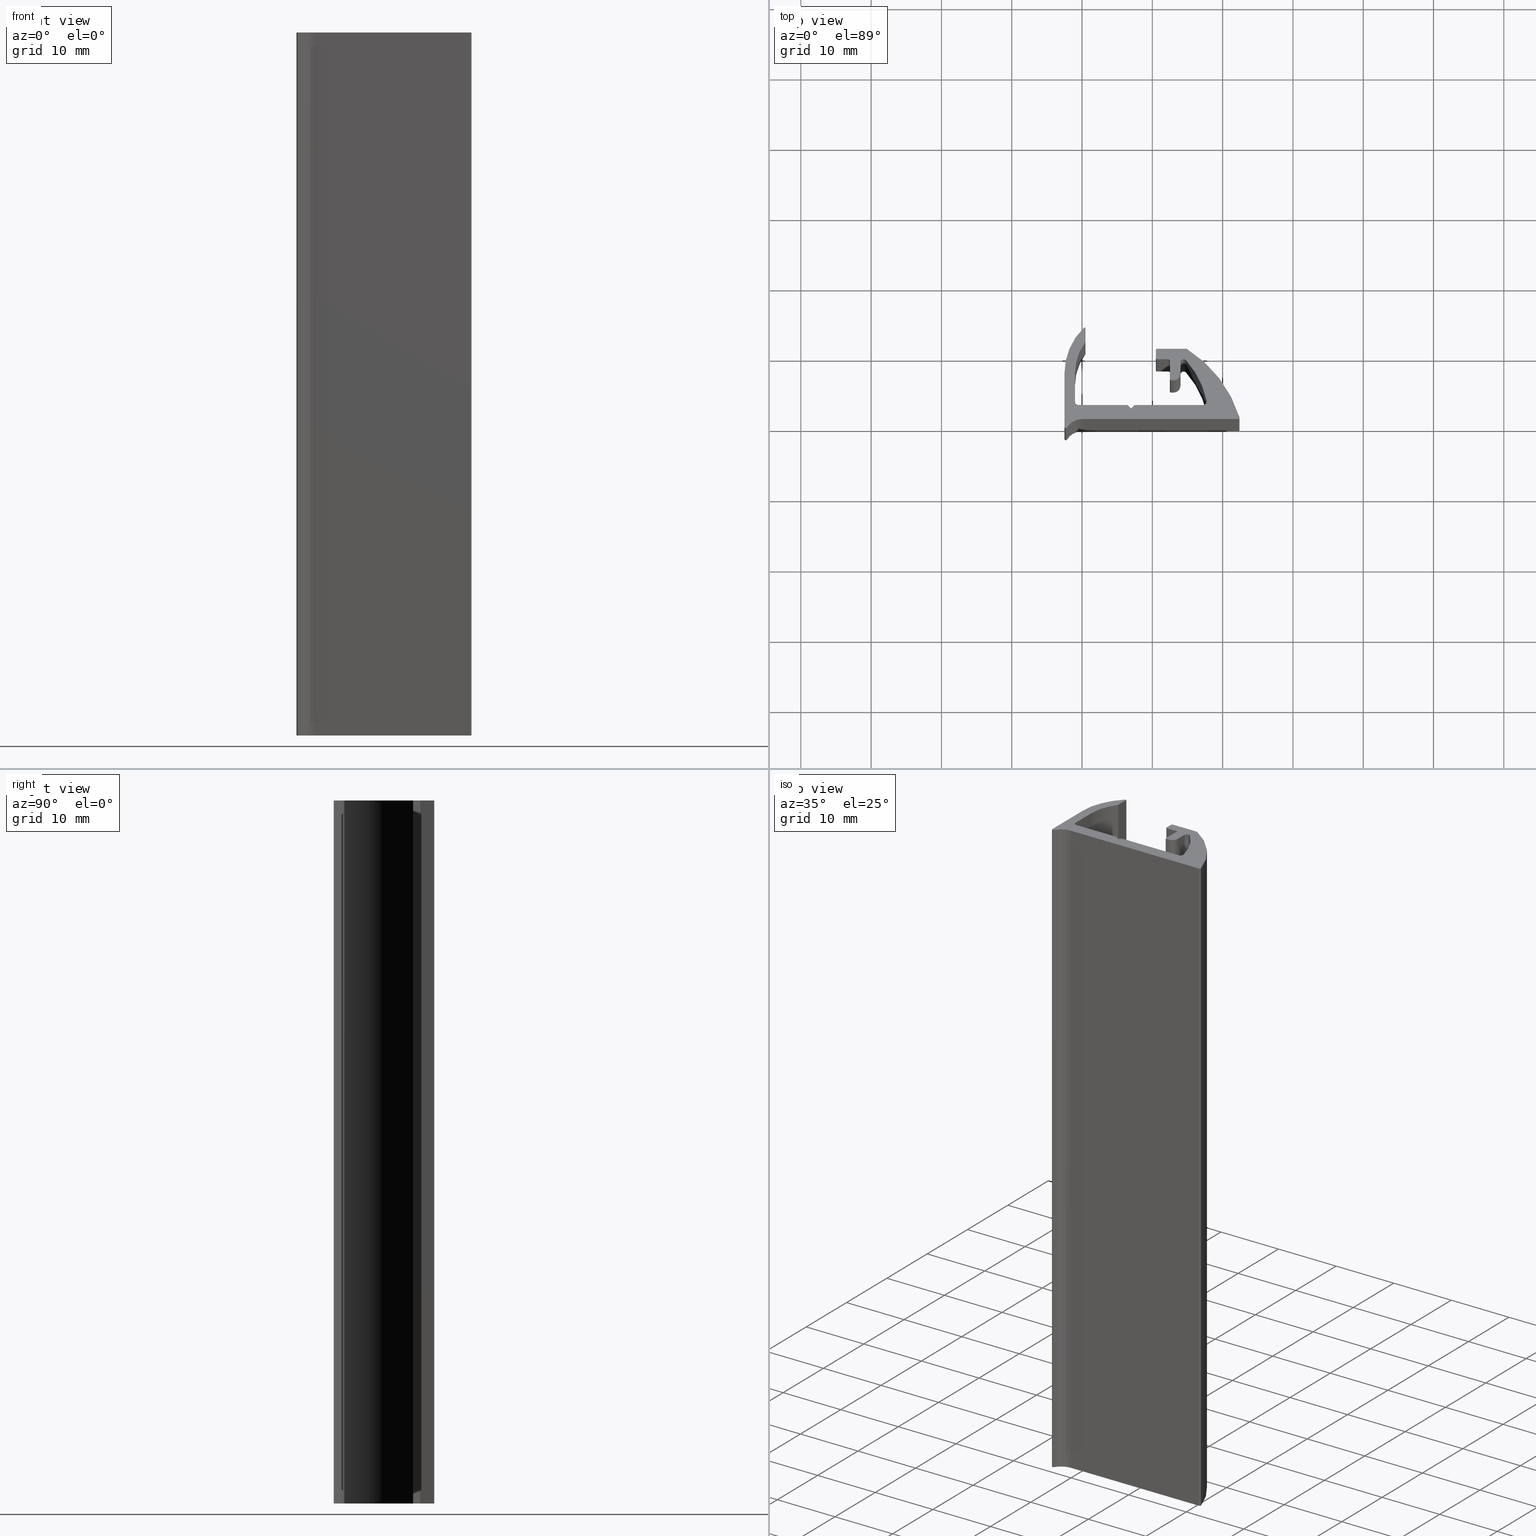
[diagram: canonical four-view strip — front | top / right | iso, engineering-drawing reading convention]
A machine part, canonical four-view strip (front | top / right | iso — engineering-drawing reading convention). The complete STEP part file that produces these views, byte-faithful:
ISO-10303-21;
HEADER;
/****************************************************************
 * Generated by software with PDE/Lib inside                    *
 * PDElib Version v4.4, created Mon 02/23/2004                  *
 * International Technegroup Inc. (www.iti-oh.com)              *
 ****************************************************************/
FILE_DESCRIPTION(('STEP AP203'),'2;1');
FILE_NAME('XB26125.stp','2011-03-21T16:29:51',(''),(''),'2009.3.110','THINKDESIGN','');
FILE_SCHEMA(('CONFIG_CONTROL_DESIGN'));
ENDSEC;
DATA;
#2=CARTESIAN_POINT('',(12.700000000004366,5.699999999975489,0.0));
#3=DIRECTION('',(0.0,0.0,1.0));
#4=DIRECTION('',(-1.0,0.0,0.0));
#5=AXIS2_PLACEMENT_3D('',#2,#3,#4);
#6=CYLINDRICAL_SURFACE('',#5,0.200000000000045);
#7=CARTESIAN_POINT('',(12.500000000004320,5.699999999975489,0.0));
#8=VERTEX_POINT('',#7);
#9=CARTESIAN_POINT('',(12.700000000004366,5.499999999975444,0.0));
#10=VERTEX_POINT('',#9);
#11=CARTESIAN_POINT('',(12.700000000004366,5.699999999975489,0.0));
#12=DIRECTION('',(0.0,0.0,1.0));
#13=DIRECTION('',(-1.0,0.0,0.0));
#14=AXIS2_PLACEMENT_3D('',#11,#12,#13);
#15=CIRCLE('',#14,0.200000000000045);
#16=EDGE_CURVE('',#8,#10,#15,.T.);
#17=ORIENTED_EDGE('',*,*,#16,.T.);
#18=CARTESIAN_POINT('',(12.700000000004366,5.499999999975444,100.0));
#19=VERTEX_POINT('',#18);
#20=CARTESIAN_POINT('',(12.700000000004366,5.499999999975444,0.0));
#21=DIRECTION('',(0.0,0.0,1.0));
#22=VECTOR('',#21,100.0);
#23=LINE('',#20,#22);
#24=EDGE_CURVE('',#10,#19,#23,.T.);
#25=ORIENTED_EDGE('',*,*,#24,.T.);
#26=CARTESIAN_POINT('',(12.500000000004320,5.699999999975489,100.0));
#27=VERTEX_POINT('',#26);
#28=CARTESIAN_POINT('',(12.700000000004366,5.699999999975489,100.0));
#29=DIRECTION('',(0.0,0.0,1.0));
#30=DIRECTION('',(-1.0,0.0,0.0));
#31=AXIS2_PLACEMENT_3D('',#28,#29,#30);
#32=CIRCLE('',#31,0.200000000000045);
#33=EDGE_CURVE('',#27,#19,#32,.T.);
#34=ORIENTED_EDGE('',*,*,#33,.F.);
#35=CARTESIAN_POINT('',(12.500000000004320,5.699999999975489,0.0));
#36=DIRECTION('',(0.0,0.0,1.0));
#37=VECTOR('',#36,100.0);
#38=LINE('',#35,#37);
#39=EDGE_CURVE('',#8,#27,#38,.T.);
#40=ORIENTED_EDGE('',*,*,#39,.F.);
#41=EDGE_LOOP('',(#17,#25,#34,#40));
#42=FACE_OUTER_BOUND('',#41,.T.);
#43=ADVANCED_FACE('',(#42),#6,.T.);
#44=CARTESIAN_POINT('',(12.700000000004366,5.499999999975444,0.0));
#45=DIRECTION('',(0.0,-1.0,0.0));
#46=DIRECTION('',(1.0,0.0,0.0));
#47=AXIS2_PLACEMENT_3D('',#44,#45,#46);
#48=PLANE('',#47);
#49=CARTESIAN_POINT('',(13.000000000004320,5.499999999975444,0.0));
#50=VERTEX_POINT('',#49);
#51=CARTESIAN_POINT('',(12.700000000004366,5.499999999975444,0.0));
#52=DIRECTION('',(1.0,0.0,0.0));
#53=VECTOR('',#52,0.299999999999955);
#54=LINE('',#51,#53);
#55=EDGE_CURVE('',#10,#50,#54,.T.);
#56=ORIENTED_EDGE('',*,*,#55,.T.);
#57=CARTESIAN_POINT('',(13.000000000004320,5.499999999975444,100.0));
#58=VERTEX_POINT('',#57);
#59=CARTESIAN_POINT('',(13.000000000004320,5.499999999975444,0.0));
#60=DIRECTION('',(0.0,0.0,1.0));
#61=VECTOR('',#60,100.0);
#62=LINE('',#59,#61);
#63=EDGE_CURVE('',#50,#58,#62,.T.);
#64=ORIENTED_EDGE('',*,*,#63,.T.);
#65=CARTESIAN_POINT('',(12.700000000004366,5.499999999975444,100.0));
#66=DIRECTION('',(1.0,0.0,0.0));
#67=VECTOR('',#66,0.299999999999955);
#68=LINE('',#65,#67);
#69=EDGE_CURVE('',#19,#58,#68,.T.);
#70=ORIENTED_EDGE('',*,*,#69,.F.);
#71=ORIENTED_EDGE('',*,*,#24,.F.);
#72=EDGE_LOOP('',(#56,#64,#70,#71));
#73=FACE_OUTER_BOUND('',#72,.T.);
#74=ADVANCED_FACE('',(#73),#48,.T.);
#75=CARTESIAN_POINT('',(13.000000000004320,6.499999999975444,0.0));
#76=DIRECTION('',(0.0,0.0,1.0));
#77=DIRECTION('',(0.0,-1.0,0.0));
#78=AXIS2_PLACEMENT_3D('',#75,#76,#77);
#79=CYLINDRICAL_SURFACE('',#78,1.0);
#80=CARTESIAN_POINT('',(14.000000000004320,6.499999999975216,0.0));
#81=VERTEX_POINT('',#80);
#82=CARTESIAN_POINT('',(13.000000000004320,6.499999999975444,0.0));
#83=DIRECTION('',(0.0,0.0,1.0));
#84=DIRECTION('',(0.0,-1.0,0.0));
#85=AXIS2_PLACEMENT_3D('',#82,#83,#84);
#86=CIRCLE('',#85,1.0);
#87=EDGE_CURVE('',#50,#81,#86,.T.);
#88=ORIENTED_EDGE('',*,*,#87,.T.);
#89=CARTESIAN_POINT('',(14.000000000004320,6.499999999975216,100.0));
#90=VERTEX_POINT('',#89);
#91=CARTESIAN_POINT('',(14.000000000004320,6.499999999975216,0.0));
#92=DIRECTION('',(0.0,0.0,1.0));
#93=VECTOR('',#92,100.0);
#94=LINE('',#91,#93);
#95=EDGE_CURVE('',#81,#90,#94,.T.);
#96=ORIENTED_EDGE('',*,*,#95,.T.);
#97=CARTESIAN_POINT('',(13.000000000004320,6.499999999975444,100.0));
#98=DIRECTION('',(0.0,0.0,1.0));
#99=DIRECTION('',(0.0,-1.0,0.0));
#100=AXIS2_PLACEMENT_3D('',#97,#98,#99);
#101=CIRCLE('',#100,1.0);
#102=EDGE_CURVE('',#58,#90,#101,.T.);
#103=ORIENTED_EDGE('',*,*,#102,.F.);
#104=ORIENTED_EDGE('',*,*,#63,.F.);
#105=EDGE_LOOP('',(#88,#96,#103,#104));
#106=FACE_OUTER_BOUND('',#105,.T.);
#107=ADVANCED_FACE('',(#106),#79,.T.);
#108=CARTESIAN_POINT('',(14.000000000004320,6.499999999975216,0.0));
#109=DIRECTION('',(1.0,0.0,0.0));
#110=DIRECTION('',(0.0,1.0,0.0));
#111=AXIS2_PLACEMENT_3D('',#108,#109,#110);
#112=PLANE('',#111);
#113=CARTESIAN_POINT('',(14.000000000004320,8.042387705127794,0.0));
#114=VERTEX_POINT('',#113);
#115=CARTESIAN_POINT('',(14.000000000004320,6.499999999975216,0.0));
#116=DIRECTION('',(0.0,1.0,0.0));
#117=VECTOR('',#116,1.542387705152578);
#118=LINE('',#115,#117);
#119=EDGE_CURVE('',#81,#114,#118,.T.);
#120=ORIENTED_EDGE('',*,*,#119,.T.);
#121=CARTESIAN_POINT('',(14.000000000004320,8.042387705127794,100.0));
#122=VERTEX_POINT('',#121);
#123=CARTESIAN_POINT('',(14.000000000004320,8.042387705127794,0.0));
#124=DIRECTION('',(0.0,0.0,1.0));
#125=VECTOR('',#124,100.0);
#126=LINE('',#123,#125);
#127=EDGE_CURVE('',#114,#122,#126,.T.);
#128=ORIENTED_EDGE('',*,*,#127,.T.);
#129=CARTESIAN_POINT('',(14.000000000004320,6.499999999975216,100.0));
#130=DIRECTION('',(0.0,1.0,0.0));
#131=VECTOR('',#130,1.542387705152578);
#132=LINE('',#129,#131);
#133=EDGE_CURVE('',#90,#122,#132,.T.);
#134=ORIENTED_EDGE('',*,*,#133,.F.);
#135=ORIENTED_EDGE('',*,*,#95,.F.);
#136=EDGE_LOOP('',(#120,#128,#134,#135));
#137=FACE_OUTER_BOUND('',#136,.T.);
#138=ADVANCED_FACE('',(#137),#112,.T.);
#139=CARTESIAN_POINT('',(14.460000000004356,8.042387705127794,0.0));
#140=DIRECTION('',(0.0,0.0,-1.0));
#141=DIRECTION('',(-1.0,-2.220446E-016,0.0));
#142=AXIS2_PLACEMENT_3D('',#139,#140,#141);
#143=CYLINDRICAL_SURFACE('',#142,0.459999999999970);
#144=CARTESIAN_POINT('',(14.802325581399373,8.349655009477829,0.0));
#145=VERTEX_POINT('',#144);
#146=CARTESIAN_POINT('',(14.460000000004358,8.042387705127796,0.0));
#147=DIRECTION('',(0.0,0.0,-1.000000000000000));
#148=DIRECTION('',(0.744186046510953,0.667972400760988,0.0));
#149=AXIS2_PLACEMENT_3D('',#146,#147,#148);
#150=CIRCLE('',#149,0.459999999999970);
#151=EDGE_CURVE('',#114,#145,#150,.T.);
#152=ORIENTED_EDGE('',*,*,#151,.T.);
#153=CARTESIAN_POINT('',(14.802325581399373,8.349655009477829,100.0));
#154=VERTEX_POINT('',#153);
#155=CARTESIAN_POINT('',(14.802325581399373,8.349655009477829,0.0));
#156=DIRECTION('',(0.0,0.0,1.0));
#157=VECTOR('',#156,100.0);
#158=LINE('',#155,#157);
#159=EDGE_CURVE('',#145,#154,#158,.T.);
#160=ORIENTED_EDGE('',*,*,#159,.T.);
#161=CARTESIAN_POINT('',(14.460000000004358,8.042387705127796,100.000000000000060));
#162=DIRECTION('',(0.0,0.0,-1.000000000000000));
#163=DIRECTION('',(0.744186046510953,0.667972400760988,0.0));
#164=AXIS2_PLACEMENT_3D('',#161,#162,#163);
#165=CIRCLE('',#164,0.459999999999970);
#166=EDGE_CURVE('',#122,#154,#165,.T.);
#167=ORIENTED_EDGE('',*,*,#166,.F.);
#168=ORIENTED_EDGE('',*,*,#127,.F.);
#169=EDGE_LOOP('',(#152,#160,#167,#168));
#170=FACE_OUTER_BOUND('',#169,.T.);
#171=ADVANCED_FACE('',(#170),#143,.F.);
#172=CARTESIAN_POINT('',(5.500000000018645,-4.138201E-011,0.0));
#173=DIRECTION('',(0.0,0.0,-1.0));
#174=DIRECTION('',(0.744186046510459,0.667972400761538,0.0));
#175=AXIS2_PLACEMENT_3D('',#172,#173,#174);
#176=CYLINDRICAL_SURFACE('',#175,12.499999999999995);
#177=CARTESIAN_POINT('',(17.725723535755606,2.604166666615583,0.0));
#178=VERTEX_POINT('',#177);
#179=CARTESIAN_POINT('',(5.500000000018646,-4.138201E-011,0.0));
#180=DIRECTION('',(0.0,0.0,-1.000000000000000));
#181=DIRECTION('',(0.978057882858957,0.208333333332557,0.0));
#182=AXIS2_PLACEMENT_3D('',#179,#180,#181);
#183=CIRCLE('',#182,12.499999999999995);
#184=EDGE_CURVE('',#145,#178,#183,.T.);
#185=ORIENTED_EDGE('',*,*,#184,.T.);
#186=CARTESIAN_POINT('',(17.725723535755606,2.604166666615583,100.0));
#187=VERTEX_POINT('',#186);
#188=CARTESIAN_POINT('',(17.725723535755606,2.604166666615583,0.0));
#189=DIRECTION('',(0.0,0.0,1.0));
#190=VECTOR('',#189,100.0);
#191=LINE('',#188,#190);
#192=EDGE_CURVE('',#178,#187,#191,.T.);
#193=ORIENTED_EDGE('',*,*,#192,.T.);
#194=CARTESIAN_POINT('',(5.500000000018646,-4.138201E-011,100.000000000000060));
#195=DIRECTION('',(0.0,0.0,-1.000000000000000));
#196=DIRECTION('',(0.978057882858957,0.208333333332557,0.0));
#197=AXIS2_PLACEMENT_3D('',#194,#195,#196);
#198=CIRCLE('',#197,12.499999999999995);
#199=EDGE_CURVE('',#154,#187,#198,.T.);
#200=ORIENTED_EDGE('',*,*,#199,.F.);
#201=ORIENTED_EDGE('',*,*,#159,.F.);
#202=EDGE_LOOP('',(#185,#193,#200,#201));
#203=FACE_OUTER_BOUND('',#202,.T.);
#204=ADVANCED_FACE('',(#203),#176,.F.);
#205=CARTESIAN_POINT('',(17.236694594328128,2.499999999940087,0.0));
#206=DIRECTION('',(0.0,0.0,-1.0));
#207=DIRECTION('',(0.978057882855027,0.208333333351008,0.0));
#208=AXIS2_PLACEMENT_3D('',#205,#206,#207);
#209=CYLINDRICAL_SURFACE('',#208,0.500000000000000);
#210=CARTESIAN_POINT('',(17.236694594328583,1.999999999940087,0.0));
#211=VERTEX_POINT('',#210);
#212=CARTESIAN_POINT('',(17.236694594328128,2.499999999940087,0.0));
#213=DIRECTION('',(0.0,0.0,-1.0));
#214=DIRECTION('',(9.094947E-013,-1.0,0.0));
#215=AXIS2_PLACEMENT_3D('',#212,#213,#214);
#216=CIRCLE('',#215,0.500000000000000);
#217=EDGE_CURVE('',#178,#211,#216,.T.);
#218=ORIENTED_EDGE('',*,*,#217,.T.);
#219=CARTESIAN_POINT('',(17.236694594328583,1.999999999940087,100.0));
#220=VERTEX_POINT('',#219);
#221=CARTESIAN_POINT('',(17.236694594328583,1.999999999940087,0.0));
#222=DIRECTION('',(0.0,0.0,1.0));
#223=VECTOR('',#222,100.0);
#224=LINE('',#221,#223);
#225=EDGE_CURVE('',#211,#220,#224,.T.);
#226=ORIENTED_EDGE('',*,*,#225,.T.);
#227=CARTESIAN_POINT('',(17.236694594328128,2.499999999940087,100.0));
#228=DIRECTION('',(0.0,0.0,-1.0));
#229=DIRECTION('',(9.094947E-013,-1.0,0.0));
#230=AXIS2_PLACEMENT_3D('',#227,#228,#229);
#231=CIRCLE('',#230,0.500000000000000);
#232=EDGE_CURVE('',#187,#220,#231,.T.);
#233=ORIENTED_EDGE('',*,*,#232,.F.);
#234=ORIENTED_EDGE('',*,*,#192,.F.);
#235=EDGE_LOOP('',(#218,#226,#233,#234));
#236=FACE_OUTER_BOUND('',#235,.T.);
#237=ADVANCED_FACE('',(#236),#209,.F.);
#238=CARTESIAN_POINT('',(17.236694594328583,1.999999999940087,0.0));
#239=DIRECTION('',(0.0,1.0,0.0));
#240=DIRECTION('',(-1.0,0.0,0.0));
#241=AXIS2_PLACEMENT_3D('',#238,#239,#240);
#242=PLANE('',#241);
#243=CARTESIAN_POINT('',(7.500000000023647,1.999999999940087,0.0));
#244=VERTEX_POINT('',#243);
#245=CARTESIAN_POINT('',(17.236694594328583,1.999999999940087,0.0));
#246=DIRECTION('',(-1.0,0.0,0.0));
#247=VECTOR('',#246,9.736694594304936);
#248=LINE('',#245,#247);
#249=EDGE_CURVE('',#211,#244,#248,.T.);
#250=ORIENTED_EDGE('',*,*,#249,.T.);
#251=CARTESIAN_POINT('',(7.500000000023647,1.999999999940087,100.0));
#252=VERTEX_POINT('',#251);
#253=CARTESIAN_POINT('',(7.500000000023647,1.999999999940087,0.0));
#254=DIRECTION('',(0.0,0.0,1.0));
#255=VECTOR('',#254,100.0);
#256=LINE('',#253,#255);
#257=EDGE_CURVE('',#244,#252,#256,.T.);
#258=ORIENTED_EDGE('',*,*,#257,.T.);
#259=CARTESIAN_POINT('',(17.236694594328583,1.999999999940087,100.0));
#260=DIRECTION('',(-1.0,0.0,0.0));
#261=VECTOR('',#260,9.736694594304936);
#262=LINE('',#259,#261);
#263=EDGE_CURVE('',#220,#252,#262,.T.);
#264=ORIENTED_EDGE('',*,*,#263,.F.);
#265=ORIENTED_EDGE('',*,*,#225,.F.);
#266=EDGE_LOOP('',(#250,#258,#264,#265));
#267=FACE_OUTER_BOUND('',#266,.T.);
#268=ADVANCED_FACE('',(#267),#242,.T.);
#269=CARTESIAN_POINT('',(7.500000000023647,1.999999999940087,0.0));
#270=DIRECTION('',(-0.707106781186548,0.707106781186548,0.0));
#271=DIRECTION('',(-0.707106781186548,-0.707106781186548,0.0));
#272=AXIS2_PLACEMENT_3D('',#269,#270,#271);
#273=PLANE('',#272);
#274=CARTESIAN_POINT('',(7.000000000062755,1.499999999979195,0.0));
#275=VERTEX_POINT('',#274);
#276=CARTESIAN_POINT('',(7.500000000023647,1.999999999940087,0.0));
#277=DIRECTION('',(-0.707106781186548,-0.707106781186548,0.0));
#278=VECTOR('',#277,0.707106781131240);
#279=LINE('',#276,#278);
#280=EDGE_CURVE('',#244,#275,#279,.T.);
#281=ORIENTED_EDGE('',*,*,#280,.T.);
#282=CARTESIAN_POINT('',(7.000000000062755,1.499999999979195,100.0));
#283=VERTEX_POINT('',#282);
#284=CARTESIAN_POINT('',(7.000000000062755,1.499999999979195,0.0));
#285=DIRECTION('',(0.0,0.0,1.0));
#286=VECTOR('',#285,100.0);
#287=LINE('',#284,#286);
#288=EDGE_CURVE('',#275,#283,#287,.T.);
#289=ORIENTED_EDGE('',*,*,#288,.T.);
#290=CARTESIAN_POINT('',(7.500000000023647,1.999999999940087,100.0));
#291=DIRECTION('',(-0.707106781186548,-0.707106781186548,0.0));
#292=VECTOR('',#291,0.707106781131240);
#293=LINE('',#290,#292);
#294=EDGE_CURVE('',#252,#283,#293,.T.);
#295=ORIENTED_EDGE('',*,*,#294,.F.);
#296=ORIENTED_EDGE('',*,*,#257,.F.);
#297=EDGE_LOOP('',(#281,#289,#295,#296));
#298=FACE_OUTER_BOUND('',#297,.T.);
#299=ADVANCED_FACE('',(#298),#273,.T.);
#300=CARTESIAN_POINT('',(7.000000000062755,1.499999999979195,0.0));
#301=DIRECTION('',(0.707106781186548,0.707106781186548,0.0));
#302=DIRECTION('',(-0.707106781186548,0.707106781186548,0.0));
#303=AXIS2_PLACEMENT_3D('',#300,#301,#302);
#304=PLANE('',#303);
#305=CARTESIAN_POINT('',(6.500000000020691,2.000000000021259,0.0));
#306=VERTEX_POINT('',#305);
#307=CARTESIAN_POINT('',(7.000000000062755,1.499999999979195,0.0));
#308=DIRECTION('',(-0.707106781186547,0.707106781186547,0.0));
#309=VECTOR('',#308,0.707106781246035);
#310=LINE('',#307,#309);
#311=EDGE_CURVE('',#275,#306,#310,.T.);
#312=ORIENTED_EDGE('',*,*,#311,.T.);
#313=CARTESIAN_POINT('',(6.500000000020691,2.000000000021259,100.0));
#314=VERTEX_POINT('',#313);
#315=CARTESIAN_POINT('',(6.500000000020691,2.000000000021259,0.0));
#316=DIRECTION('',(0.0,0.0,1.0));
#317=VECTOR('',#316,100.0);
#318=LINE('',#315,#317);
#319=EDGE_CURVE('',#306,#314,#318,.T.);
#320=ORIENTED_EDGE('',*,*,#319,.T.);
#321=CARTESIAN_POINT('',(7.000000000062755,1.499999999979195,100.0));
#322=DIRECTION('',(-0.707106781186547,0.707106781186547,0.0));
#323=VECTOR('',#322,0.707106781246035);
#324=LINE('',#321,#323);
#325=EDGE_CURVE('',#283,#314,#324,.T.);
#326=ORIENTED_EDGE('',*,*,#325,.F.);
#327=ORIENTED_EDGE('',*,*,#288,.F.);
#328=EDGE_LOOP('',(#312,#320,#326,#327));
#329=FACE_OUTER_BOUND('',#328,.T.);
#330=ADVANCED_FACE('',(#329),#304,.T.);
#331=CARTESIAN_POINT('',(6.500000000020691,2.000000000021259,0.0));
#332=DIRECTION('',(0.0,1.0,0.0));
#333=DIRECTION('',(-1.0,0.0,0.0));
#334=AXIS2_PLACEMENT_3D('',#331,#332,#333);
#335=PLANE('',#334);
#336=CARTESIAN_POINT('',(-0.499999999979309,2.000000000021259,0.0));
#337=VERTEX_POINT('',#336);
#338=CARTESIAN_POINT('',(6.500000000020691,2.000000000021259,0.0));
#339=DIRECTION('',(-1.0,0.0,0.0));
#340=VECTOR('',#339,7.0);
#341=LINE('',#338,#340);
#342=EDGE_CURVE('',#306,#337,#341,.T.);
#343=ORIENTED_EDGE('',*,*,#342,.T.);
#344=CARTESIAN_POINT('',(-0.499999999979309,2.000000000021259,100.0));
#345=VERTEX_POINT('',#344);
#346=CARTESIAN_POINT('',(-0.499999999979309,2.000000000021259,0.0));
#347=DIRECTION('',(0.0,0.0,1.0));
#348=VECTOR('',#347,100.0);
#349=LINE('',#346,#348);
#350=EDGE_CURVE('',#337,#345,#349,.T.);
#351=ORIENTED_EDGE('',*,*,#350,.T.);
#352=CARTESIAN_POINT('',(6.500000000020691,2.000000000021259,100.0));
#353=DIRECTION('',(-1.0,0.0,0.0));
#354=VECTOR('',#353,7.0);
#355=LINE('',#352,#354);
#356=EDGE_CURVE('',#314,#345,#355,.T.);
#357=ORIENTED_EDGE('',*,*,#356,.F.);
#358=ORIENTED_EDGE('',*,*,#319,.F.);
#359=EDGE_LOOP('',(#343,#351,#357,#358));
#360=FACE_OUTER_BOUND('',#359,.T.);
#361=ADVANCED_FACE('',(#360),#335,.T.);
#362=CARTESIAN_POINT('',(-0.499999999979309,2.500000000021259,0.0));
#363=DIRECTION('',(0.0,0.0,-1.0));
#364=DIRECTION('',(-6.123234E-017,-1.0,0.0));
#365=AXIS2_PLACEMENT_3D('',#362,#363,#364);
#366=CYLINDRICAL_SURFACE('',#365,0.500000000000000);
#367=CARTESIAN_POINT('',(-0.999999999979309,2.500000000021259,0.0));
#368=VERTEX_POINT('',#367);
#369=CARTESIAN_POINT('',(-0.499999999979309,2.500000000021259,0.0));
#370=DIRECTION('',(0.0,0.0,-1.0));
#371=DIRECTION('',(-1.0,0.0,0.0));
#372=AXIS2_PLACEMENT_3D('',#369,#370,#371);
#373=CIRCLE('',#372,0.500000000000000);
#374=EDGE_CURVE('',#337,#368,#373,.T.);
#375=ORIENTED_EDGE('',*,*,#374,.T.);
#376=CARTESIAN_POINT('',(-0.999999999979309,2.500000000021259,100.0));
#377=VERTEX_POINT('',#376);
#378=CARTESIAN_POINT('',(-0.999999999979309,2.500000000021259,0.0));
#379=DIRECTION('',(0.0,0.0,1.0));
#380=VECTOR('',#379,100.0);
#381=LINE('',#378,#380);
#382=EDGE_CURVE('',#368,#377,#381,.T.);
#383=ORIENTED_EDGE('',*,*,#382,.T.);
#384=CARTESIAN_POINT('',(-0.499999999979309,2.500000000021259,100.0));
#385=DIRECTION('',(0.0,0.0,-1.0));
#386=DIRECTION('',(-1.0,0.0,0.0));
#387=AXIS2_PLACEMENT_3D('',#384,#385,#386);
#388=CIRCLE('',#387,0.500000000000000);
#389=EDGE_CURVE('',#345,#377,#388,.T.);
#390=ORIENTED_EDGE('',*,*,#389,.F.);
#391=ORIENTED_EDGE('',*,*,#350,.F.);
#392=EDGE_LOOP('',(#375,#383,#390,#391));
#393=FACE_OUTER_BOUND('',#392,.T.);
#394=ADVANCED_FACE('',(#393),#366,.F.);
#395=CARTESIAN_POINT('',(-0.999999999979309,2.500000000021259,0.0));
#396=DIRECTION('',(1.0,0.0,0.0));
#397=DIRECTION('',(0.0,1.0,0.0));
#398=AXIS2_PLACEMENT_3D('',#395,#396,#397);
#399=PLANE('',#398);
#400=CARTESIAN_POINT('',(-0.999999999979309,6.500000000021259,0.0));
#401=VERTEX_POINT('',#400);
#402=CARTESIAN_POINT('',(-0.999999999979309,2.500000000021259,0.0));
#403=DIRECTION('',(0.0,1.0,0.0));
#404=VECTOR('',#403,4.0);
#405=LINE('',#402,#404);
#406=EDGE_CURVE('',#368,#401,#405,.T.);
#407=ORIENTED_EDGE('',*,*,#406,.T.);
#408=CARTESIAN_POINT('',(-0.999999999979309,6.500000000021259,100.0));
#409=VERTEX_POINT('',#408);
#410=CARTESIAN_POINT('',(-0.999999999979309,6.500000000021259,0.0));
#411=DIRECTION('',(0.0,0.0,1.0));
#412=VECTOR('',#411,100.0);
#413=LINE('',#410,#412);
#414=EDGE_CURVE('',#401,#409,#413,.T.);
#415=ORIENTED_EDGE('',*,*,#414,.T.);
#416=CARTESIAN_POINT('',(-0.999999999979309,2.500000000021259,100.0));
#417=DIRECTION('',(0.0,1.0,0.0));
#418=VECTOR('',#417,4.0);
#419=LINE('',#416,#418);
#420=EDGE_CURVE('',#377,#409,#419,.T.);
#421=ORIENTED_EDGE('',*,*,#420,.F.);
#422=ORIENTED_EDGE('',*,*,#382,.F.);
#423=EDGE_LOOP('',(#407,#415,#421,#422));
#424=FACE_OUTER_BOUND('',#423,.T.);
#425=ADVANCED_FACE('',(#424),#399,.T.);
#426=CARTESIAN_POINT('',(6.500000000020691,6.500000000021259,0.0));
#427=DIRECTION('',(0.0,0.0,-1.0));
#428=DIRECTION('',(-1.0,1.665335E-016,0.0));
#429=AXIS2_PLACEMENT_3D('',#426,#427,#428);
#430=CYLINDRICAL_SURFACE('',#429,7.500000000000068);
#431=CARTESIAN_POINT('',(0.500000000014552,11.000000000013188,0.0));
#432=VERTEX_POINT('',#431);
#433=CARTESIAN_POINT('',(6.500000000020691,6.500000000021259,0.0));
#434=DIRECTION('',(0.0,0.0,-1.0));
#435=DIRECTION('',(-0.800000000000811,0.599999999998918,0.0));
#436=AXIS2_PLACEMENT_3D('',#433,#434,#435);
#437=CIRCLE('',#436,7.500000000000068);
#438=EDGE_CURVE('',#401,#432,#437,.T.);
#439=ORIENTED_EDGE('',*,*,#438,.T.);
#440=CARTESIAN_POINT('',(0.500000000014552,11.000000000013188,100.0));
#441=VERTEX_POINT('',#440);
#442=CARTESIAN_POINT('',(0.500000000014552,11.000000000013188,0.0));
#443=DIRECTION('',(0.0,0.0,1.0));
#444=VECTOR('',#443,100.0);
#445=LINE('',#442,#444);
#446=EDGE_CURVE('',#432,#441,#445,.T.);
#447=ORIENTED_EDGE('',*,*,#446,.T.);
#448=CARTESIAN_POINT('',(6.500000000020691,6.500000000021259,100.0));
#449=DIRECTION('',(0.0,0.0,-1.0));
#450=DIRECTION('',(-0.800000000000811,0.599999999998918,0.0));
#451=AXIS2_PLACEMENT_3D('',#448,#449,#450);
#452=CIRCLE('',#451,7.500000000000068);
#453=EDGE_CURVE('',#409,#441,#452,.T.);
#454=ORIENTED_EDGE('',*,*,#453,.F.);
#455=ORIENTED_EDGE('',*,*,#414,.F.);
#456=EDGE_LOOP('',(#439,#447,#454,#455));
#457=FACE_OUTER_BOUND('',#456,.T.);
#458=ADVANCED_FACE('',(#457),#430,.F.);
#459=CARTESIAN_POINT('',(0.500000000014552,11.000000000013188,0.0));
#460=DIRECTION('',(1.0,7.275958E-012,0.0));
#461=DIRECTION('',(-7.275958E-012,1.0,0.0));
#462=AXIS2_PLACEMENT_3D('',#459,#460,#461);
#463=PLANE('',#462);
#464=CARTESIAN_POINT('',(0.500000000000000,12.999999999999886,0.0));
#465=VERTEX_POINT('',#464);
#466=CARTESIAN_POINT('',(0.500000000014552,11.000000000013188,0.0));
#467=DIRECTION('',(-7.275958E-012,1.0,0.0));
#468=VECTOR('',#467,1.999999999986699);
#469=LINE('',#466,#468);
#470=EDGE_CURVE('',#432,#465,#469,.T.);
#471=ORIENTED_EDGE('',*,*,#470,.T.);
#472=CARTESIAN_POINT('',(0.500000000000000,12.999999999999886,100.0));
#473=VERTEX_POINT('',#472);
#474=CARTESIAN_POINT('',(0.500000000000000,12.999999999999886,0.0));
#475=DIRECTION('',(0.0,0.0,1.0));
#476=VECTOR('',#475,100.0);
#477=LINE('',#474,#476);
#478=EDGE_CURVE('',#465,#473,#477,.T.);
#479=ORIENTED_EDGE('',*,*,#478,.T.);
#480=CARTESIAN_POINT('',(0.500000000014552,11.000000000013188,100.0));
#481=DIRECTION('',(-7.275958E-012,1.0,0.0));
#482=VECTOR('',#481,1.999999999986699);
#483=LINE('',#480,#482);
#484=EDGE_CURVE('',#441,#473,#483,.T.);
#485=ORIENTED_EDGE('',*,*,#484,.F.);
#486=ORIENTED_EDGE('',*,*,#446,.F.);
#487=EDGE_LOOP('',(#471,#479,#485,#486));
#488=FACE_OUTER_BOUND('',#487,.T.);
#489=ADVANCED_FACE('',(#488),#463,.T.);
#490=CARTESIAN_POINT('',(0.500000000000000,12.999999999999886,0.0));
#491=DIRECTION('',(0.0,1.0,0.0));
#492=DIRECTION('',(-1.0,0.0,0.0));
#493=AXIS2_PLACEMENT_3D('',#490,#491,#492);
#494=PLANE('',#493);
#495=CARTESIAN_POINT('',(0.275050201012391,13.000000000006594,0.0));
#496=VERTEX_POINT('',#495);
#497=CARTESIAN_POINT('',(0.500000000000000,12.999999999999886,0.0));
#498=DIRECTION('',(-1.0,0.0,0.0));
#499=VECTOR('',#498,0.224949798994885);
#500=LINE('',#497,#499);
#501=EDGE_CURVE('',#465,#496,#500,.T.);
#502=ORIENTED_EDGE('',*,*,#501,.T.);
#503=CARTESIAN_POINT('',(0.275050201012391,13.000000000006594,100.0));
#504=VERTEX_POINT('',#503);
#505=CARTESIAN_POINT('',(0.275050201012391,13.000000000006594,0.0));
#506=DIRECTION('',(0.0,0.0,1.0));
#507=VECTOR('',#506,100.0);
#508=LINE('',#505,#507);
#509=EDGE_CURVE('',#496,#504,#508,.T.);
#510=ORIENTED_EDGE('',*,*,#509,.T.);
#511=CARTESIAN_POINT('',(0.500000000000000,12.999999999999886,100.0));
#512=DIRECTION('',(-1.0,0.0,0.0));
#513=VECTOR('',#512,0.224949798994885);
#514=LINE('',#511,#513);
#515=EDGE_CURVE('',#473,#504,#514,.T.);
#516=ORIENTED_EDGE('',*,*,#515,.F.);
#517=ORIENTED_EDGE('',*,*,#478,.F.);
#518=EDGE_LOOP('',(#502,#510,#516,#517));
#519=FACE_OUTER_BOUND('',#518,.T.);
#520=ADVANCED_FACE('',(#519),#494,.T.);
#521=CARTESIAN_POINT('',(6.500000000000000,6.500000000000000,0.0));
#522=DIRECTION('',(0.0,0.0,1.0));
#523=DIRECTION('',(1.0,0.0,0.0));
#524=AXIS2_PLACEMENT_3D('',#521,#522,#523);
#525=CYLINDRICAL_SURFACE('',#524,9.0);
#526=CARTESIAN_POINT('',(-2.500000000000000,6.500000000000000,0.0));
#527=VERTEX_POINT('',#526);
#528=CARTESIAN_POINT('',(6.500000000000000,6.500000000000000,0.0));
#529=DIRECTION('',(0.0,0.0,1.0));
#530=DIRECTION('',(1.0,0.0,0.0));
#531=AXIS2_PLACEMENT_3D('',#528,#529,#530);
#532=CIRCLE('',#531,9.0);
#533=EDGE_CURVE('',#496,#527,#532,.T.);
#534=ORIENTED_EDGE('',*,*,#533,.T.);
#535=CARTESIAN_POINT('',(-2.500000000000000,6.500000000000000,100.0));
#536=VERTEX_POINT('',#535);
#537=CARTESIAN_POINT('',(-2.500000000000000,6.500000000000000,0.0));
#538=DIRECTION('',(0.0,0.0,1.0));
#539=VECTOR('',#538,100.0);
#540=LINE('',#537,#539);
#541=EDGE_CURVE('',#527,#536,#540,.T.);
#542=ORIENTED_EDGE('',*,*,#541,.T.);
#543=CARTESIAN_POINT('',(6.500000000000000,6.500000000000000,100.0));
#544=DIRECTION('',(0.0,0.0,1.0));
#545=DIRECTION('',(1.0,0.0,0.0));
#546=AXIS2_PLACEMENT_3D('',#543,#544,#545);
#547=CIRCLE('',#546,9.0);
#548=EDGE_CURVE('',#504,#536,#547,.T.);
#549=ORIENTED_EDGE('',*,*,#548,.F.);
#550=ORIENTED_EDGE('',*,*,#509,.F.);
#551=EDGE_LOOP('',(#534,#542,#549,#550));
#552=FACE_OUTER_BOUND('',#551,.T.);
#553=ADVANCED_FACE('',(#552),#525,.T.);
#554=CARTESIAN_POINT('',(-2.500000000000000,6.500000000000000,0.0));
#555=DIRECTION('',(-1.0,0.0,0.0));
#556=DIRECTION('',(0.0,-1.0,0.0));
#557=AXIS2_PLACEMENT_3D('',#554,#555,#556);
#558=PLANE('',#557);
#559=CARTESIAN_POINT('',(-2.500000000000000,-1.085786437626894,0.0));
#560=VERTEX_POINT('',#559);
#561=CARTESIAN_POINT('',(-2.500000000000000,6.500000000000000,0.0));
#562=DIRECTION('',(0.0,-1.0,0.0));
#563=VECTOR('',#562,7.585786437626894);
#564=LINE('',#561,#563);
#565=EDGE_CURVE('',#527,#560,#564,.T.);
#566=ORIENTED_EDGE('',*,*,#565,.T.);
#567=CARTESIAN_POINT('',(-2.500000000000000,-1.085786437626894,100.0));
#568=VERTEX_POINT('',#567);
#569=CARTESIAN_POINT('',(-2.500000000000000,-1.085786437626894,0.0));
#570=DIRECTION('',(0.0,0.0,1.0));
#571=VECTOR('',#570,100.0);
#572=LINE('',#569,#571);
#573=EDGE_CURVE('',#560,#568,#572,.T.);
#574=ORIENTED_EDGE('',*,*,#573,.T.);
#575=CARTESIAN_POINT('',(-2.500000000000000,6.500000000000000,100.0));
#576=DIRECTION('',(0.0,-1.0,0.0));
#577=VECTOR('',#576,7.585786437626894);
#578=LINE('',#575,#577);
#579=EDGE_CURVE('',#536,#568,#578,.T.);
#580=ORIENTED_EDGE('',*,*,#579,.F.);
#581=ORIENTED_EDGE('',*,*,#541,.F.);
#582=EDGE_LOOP('',(#566,#574,#580,#581));
#583=FACE_OUTER_BOUND('',#582,.T.);
#584=ADVANCED_FACE('',(#583),#558,.T.);
#585=CARTESIAN_POINT('',(-2.299999999999955,-1.085786437626894,0.0));
#586=DIRECTION('',(0.0,0.0,1.0));
#587=DIRECTION('',(1.0,0.0,0.0));
#588=AXIS2_PLACEMENT_3D('',#585,#586,#587);
#589=CYLINDRICAL_SURFACE('',#588,0.200000000000000);
#590=CARTESIAN_POINT('',(-2.129629629630017,-1.190542997803618,0.0));
#591=VERTEX_POINT('',#590);
#592=CARTESIAN_POINT('',(-2.299999999999955,-1.085786437626894,0.0));
#593=DIRECTION('',(0.0,0.0,1.0));
#594=DIRECTION('',(1.0,0.0,0.0));
#595=AXIS2_PLACEMENT_3D('',#592,#593,#594);
#596=CIRCLE('',#595,0.200000000000000);
#597=EDGE_CURVE('',#560,#591,#596,.T.);
#598=ORIENTED_EDGE('',*,*,#597,.T.);
#599=CARTESIAN_POINT('',(-2.129629629630017,-1.190542997803618,100.0));
#600=VERTEX_POINT('',#599);
#601=CARTESIAN_POINT('',(-2.129629629630017,-1.190542997803618,0.0));
#602=DIRECTION('',(0.0,0.0,1.0));
#603=VECTOR('',#602,100.0);
#604=LINE('',#601,#603);
#605=EDGE_CURVE('',#591,#600,#604,.T.);
#606=ORIENTED_EDGE('',*,*,#605,.T.);
#607=CARTESIAN_POINT('',(-2.299999999999955,-1.085786437626894,100.0));
#608=DIRECTION('',(0.0,0.0,1.0));
#609=DIRECTION('',(1.0,0.0,0.0));
#610=AXIS2_PLACEMENT_3D('',#607,#608,#609);
#611=CIRCLE('',#610,0.200000000000000);
#612=EDGE_CURVE('',#568,#600,#611,.T.);
#613=ORIENTED_EDGE('',*,*,#612,.F.);
#614=ORIENTED_EDGE('',*,*,#573,.F.);
#615=EDGE_LOOP('',(#598,#606,#613,#614));
#616=FACE_OUTER_BOUND('',#615,.T.);
#617=ADVANCED_FACE('',(#616),#589,.T.);
#618=CARTESIAN_POINT('',(0.0,-2.500000000000114,0.0));
#619=DIRECTION('',(0.0,0.0,-1.0));
#620=DIRECTION('',(-0.851851851852047,0.523782800878606,0.0));
#621=AXIS2_PLACEMENT_3D('',#618,#619,#620);
#622=CYLINDRICAL_SURFACE('',#621,2.500000000000000);
#623=CARTESIAN_POINT('',(0.0,0.0,0.0));
#624=VERTEX_POINT('',#623);
#625=CARTESIAN_POINT('',(0.0,-2.500000000000114,0.0));
#626=DIRECTION('',(0.0,0.0,-1.0));
#627=DIRECTION('',(1.0,0.0,0.0));
#628=AXIS2_PLACEMENT_3D('',#625,#626,#627);
#629=CIRCLE('',#628,2.500000000000000);
#630=EDGE_CURVE('',#591,#624,#629,.T.);
#631=ORIENTED_EDGE('',*,*,#630,.T.);
#632=CARTESIAN_POINT('',(0.0,0.0,100.0));
#633=VERTEX_POINT('',#632);
#634=CARTESIAN_POINT('',(0.0,0.0,0.0));
#635=DIRECTION('',(0.0,0.0,1.0));
#636=VECTOR('',#635,100.0);
#637=LINE('',#634,#636);
#638=EDGE_CURVE('',#624,#633,#637,.T.);
#639=ORIENTED_EDGE('',*,*,#638,.T.);
#640=CARTESIAN_POINT('',(0.0,-2.500000000000114,100.0));
#641=DIRECTION('',(0.0,0.0,-1.0));
#642=DIRECTION('',(1.0,0.0,0.0));
#643=AXIS2_PLACEMENT_3D('',#640,#641,#642);
#644=CIRCLE('',#643,2.500000000000000);
#645=EDGE_CURVE('',#600,#633,#644,.T.);
#646=ORIENTED_EDGE('',*,*,#645,.F.);
#647=ORIENTED_EDGE('',*,*,#605,.F.);
#648=EDGE_LOOP('',(#631,#639,#646,#647));
#649=FACE_OUTER_BOUND('',#648,.T.);
#650=ADVANCED_FACE('',(#649),#622,.F.);
#651=CARTESIAN_POINT('',(0.0,0.0,0.0));
#652=DIRECTION('',(0.0,-1.0,0.0));
#653=DIRECTION('',(1.0,0.0,0.0));
#654=AXIS2_PLACEMENT_3D('',#651,#652,#653);
#655=PLANE('',#654);
#656=CARTESIAN_POINT('',(22.209578091622006,-2.273737E-013,0.0));
#657=VERTEX_POINT('',#656);
#658=CARTESIAN_POINT('',(0.0,0.0,0.0));
#659=DIRECTION('',(1.0,0.0,0.0));
#660=VECTOR('',#659,22.209578091622006);
#661=LINE('',#658,#660);
#662=EDGE_CURVE('',#624,#657,#661,.T.);
#663=ORIENTED_EDGE('',*,*,#662,.T.);
#664=CARTESIAN_POINT('',(22.209578091622006,-2.273737E-013,100.0));
#665=VERTEX_POINT('',#664);
#666=CARTESIAN_POINT('',(22.209578091622006,-2.273737E-013,0.0));
#667=DIRECTION('',(0.0,0.0,1.0));
#668=VECTOR('',#667,100.0);
#669=LINE('',#666,#668);
#670=EDGE_CURVE('',#657,#665,#669,.T.);
#671=ORIENTED_EDGE('',*,*,#670,.T.);
#672=CARTESIAN_POINT('',(0.0,0.0,100.0));
#673=DIRECTION('',(1.0,0.0,0.0));
#674=VECTOR('',#673,22.209578091622006);
#675=LINE('',#672,#674);
#676=EDGE_CURVE('',#633,#665,#675,.T.);
#677=ORIENTED_EDGE('',*,*,#676,.F.);
#678=ORIENTED_EDGE('',*,*,#638,.F.);
#679=EDGE_LOOP('',(#663,#671,#677,#678));
#680=FACE_OUTER_BOUND('',#679,.T.);
#681=ADVANCED_FACE('',(#680),#655,.T.);
#682=CARTESIAN_POINT('',(22.209578091622006,0.199999999999818,0.0));
#683=DIRECTION('',(0.0,0.0,1.0));
#684=DIRECTION('',(5.053215E-016,-1.0,0.0));
#685=AXIS2_PLACEMENT_3D('',#682,#683,#684);
#686=CYLINDRICAL_SURFACE('',#685,0.200000000000000);
#687=CARTESIAN_POINT('',(22.400544698378781,0.259428571442072,0.0));
#688=VERTEX_POINT('',#687);
#689=CARTESIAN_POINT('',(22.209578091622006,0.199999999999818,0.0));
#690=DIRECTION('',(0.0,0.0,1.0));
#691=DIRECTION('',(1.0,0.0,0.0));
#692=AXIS2_PLACEMENT_3D('',#689,#690,#691);
#693=CIRCLE('',#692,0.200000000000000);
#694=EDGE_CURVE('',#657,#688,#693,.T.);
#695=ORIENTED_EDGE('',*,*,#694,.T.);
#696=CARTESIAN_POINT('',(22.400544698378781,0.259428571442072,100.0));
#697=VERTEX_POINT('',#696);
#698=CARTESIAN_POINT('',(22.400544698378781,0.259428571442072,0.0));
#699=DIRECTION('',(0.0,0.0,1.0));
#700=VECTOR('',#699,100.0);
#701=LINE('',#698,#700);
#702=EDGE_CURVE('',#688,#697,#701,.T.);
#703=ORIENTED_EDGE('',*,*,#702,.T.);
#704=CARTESIAN_POINT('',(22.209578091622006,0.199999999999818,100.0));
#705=DIRECTION('',(0.0,0.0,1.0));
#706=DIRECTION('',(1.0,0.0,0.0));
#707=AXIS2_PLACEMENT_3D('',#704,#705,#706);
#708=CIRCLE('',#707,0.200000000000000);
#709=EDGE_CURVE('',#665,#697,#708,.T.);
#710=ORIENTED_EDGE('',*,*,#709,.F.);
#711=ORIENTED_EDGE('',*,*,#670,.F.);
#712=EDGE_LOOP('',(#695,#703,#710,#711));
#713=FACE_OUTER_BOUND('',#712,.T.);
#714=ADVANCED_FACE('',(#713),#686,.T.);
#715=CARTESIAN_POINT('',(5.500000000008640,-5.000000000027171,0.0));
#716=DIRECTION('',(0.0,0.0,1.0));
#717=DIRECTION('',(0.954833033806232,0.297142857145158,0.0));
#718=AXIS2_PLACEMENT_3D('',#715,#716,#717);
#719=CYLINDRICAL_SURFACE('',#718,17.699999999999832);
#720=CARTESIAN_POINT('',(14.896275858025547,9.999999999974421,0.0));
#721=VERTEX_POINT('',#720);
#722=CARTESIAN_POINT('',(5.500000000008639,-5.000000000027171,0.0));
#723=DIRECTION('',(0.0,0.0,1.0));
#724=DIRECTION('',(0.954833033806232,0.297142857145158,0.0));
#725=AXIS2_PLACEMENT_3D('',#722,#723,#724);
#726=CIRCLE('',#725,17.699999999999832);
#727=EDGE_CURVE('',#688,#721,#726,.T.);
#728=ORIENTED_EDGE('',*,*,#727,.T.);
#729=CARTESIAN_POINT('',(14.896275858025547,9.999999999974421,100.0));
#730=VERTEX_POINT('',#729);
#731=CARTESIAN_POINT('',(14.896275858025547,9.999999999974421,0.0));
#732=DIRECTION('',(0.0,0.0,1.0));
#733=VECTOR('',#732,100.0);
#734=LINE('',#731,#733);
#735=EDGE_CURVE('',#721,#730,#734,.T.);
#736=ORIENTED_EDGE('',*,*,#735,.T.);
#737=CARTESIAN_POINT('',(5.500000000008639,-5.000000000027171,100.0));
#738=DIRECTION('',(0.0,0.0,1.0));
#739=DIRECTION('',(0.954833033806232,0.297142857145158,0.0));
#740=AXIS2_PLACEMENT_3D('',#737,#738,#739);
#741=CIRCLE('',#740,17.699999999999832);
#742=EDGE_CURVE('',#697,#730,#741,.T.);
#743=ORIENTED_EDGE('',*,*,#742,.F.);
#744=ORIENTED_EDGE('',*,*,#702,.F.);
#745=EDGE_LOOP('',(#728,#736,#743,#744));
#746=FACE_OUTER_BOUND('',#745,.T.);
#747=ADVANCED_FACE('',(#746),#719,.T.);
#748=CARTESIAN_POINT('',(14.896275858025547,9.999999999974421,0.0));
#749=DIRECTION('',(0.0,1.0,0.0));
#750=DIRECTION('',(-1.0,0.0,0.0));
#751=AXIS2_PLACEMENT_3D('',#748,#749,#750);
#752=PLANE('',#751);
#753=CARTESIAN_POINT('',(10.700000000004366,9.999999999974421,0.0));
#754=VERTEX_POINT('',#753);
#755=CARTESIAN_POINT('',(14.896275858025547,9.999999999974421,0.0));
#756=DIRECTION('',(-1.0,0.0,0.0));
#757=VECTOR('',#756,4.196275858021181);
#758=LINE('',#755,#757);
#759=EDGE_CURVE('',#721,#754,#758,.T.);
#760=ORIENTED_EDGE('',*,*,#759,.T.);
#761=CARTESIAN_POINT('',(10.700000000004366,9.999999999974421,100.0));
#762=VERTEX_POINT('',#761);
#763=CARTESIAN_POINT('',(10.700000000004366,9.999999999974421,0.0));
#764=DIRECTION('',(0.0,0.0,1.0));
#765=VECTOR('',#764,100.0);
#766=LINE('',#763,#765);
#767=EDGE_CURVE('',#754,#762,#766,.T.);
#768=ORIENTED_EDGE('',*,*,#767,.T.);
#769=CARTESIAN_POINT('',(14.896275858025547,9.999999999974421,100.0));
#770=DIRECTION('',(-1.0,0.0,0.0));
#771=VECTOR('',#770,4.196275858021181);
#772=LINE('',#769,#771);
#773=EDGE_CURVE('',#730,#762,#772,.T.);
#774=ORIENTED_EDGE('',*,*,#773,.F.);
#775=ORIENTED_EDGE('',*,*,#735,.F.);
#776=EDGE_LOOP('',(#760,#768,#774,#775));
#777=FACE_OUTER_BOUND('',#776,.T.);
#778=ADVANCED_FACE('',(#777),#752,.T.);
#779=CARTESIAN_POINT('',(10.700000000004366,9.799999999974375,0.0));
#780=DIRECTION('',(0.0,0.0,1.0));
#781=DIRECTION('',(0.0,1.0,0.0));
#782=AXIS2_PLACEMENT_3D('',#779,#780,#781);
#783=CYLINDRICAL_SURFACE('',#782,0.200000000000045);
#784=CARTESIAN_POINT('',(10.500000000004320,9.799999999976308,0.0));
#785=VERTEX_POINT('',#784);
#786=CARTESIAN_POINT('',(10.700000000004366,9.799999999974375,0.0));
#787=DIRECTION('',(0.0,0.0,1.0));
#788=DIRECTION('',(0.0,1.0,0.0));
#789=AXIS2_PLACEMENT_3D('',#786,#787,#788);
#790=CIRCLE('',#789,0.200000000000045);
#791=EDGE_CURVE('',#754,#785,#790,.T.);
#792=ORIENTED_EDGE('',*,*,#791,.T.);
#793=CARTESIAN_POINT('',(10.500000000004320,9.799999999976308,100.0));
#794=VERTEX_POINT('',#793);
#795=CARTESIAN_POINT('',(10.500000000004320,9.799999999976308,0.0));
#796=DIRECTION('',(0.0,0.0,1.0));
#797=VECTOR('',#796,100.0);
#798=LINE('',#795,#797);
#799=EDGE_CURVE('',#785,#794,#798,.T.);
#800=ORIENTED_EDGE('',*,*,#799,.T.);
#801=CARTESIAN_POINT('',(10.700000000004366,9.799999999974375,100.0));
#802=DIRECTION('',(0.0,0.0,1.0));
#803=DIRECTION('',(0.0,1.0,0.0));
#804=AXIS2_PLACEMENT_3D('',#801,#802,#803);
#805=CIRCLE('',#804,0.200000000000045);
#806=EDGE_CURVE('',#762,#794,#805,.T.);
#807=ORIENTED_EDGE('',*,*,#806,.F.);
#808=ORIENTED_EDGE('',*,*,#767,.F.);
#809=EDGE_LOOP('',(#792,#800,#807,#808));
#810=FACE_OUTER_BOUND('',#809,.T.);
#811=ADVANCED_FACE('',(#810),#783,.T.);
#812=CARTESIAN_POINT('',(10.500000000004320,9.799999999976308,0.0));
#813=DIRECTION('',(-1.0,0.0,0.0));
#814=DIRECTION('',(0.0,-1.0,0.0));
#815=AXIS2_PLACEMENT_3D('',#812,#813,#814);
#816=PLANE('',#815);
#817=CARTESIAN_POINT('',(10.500000000004320,8.699999999976058,0.0));
#818=VERTEX_POINT('',#817);
#819=CARTESIAN_POINT('',(10.500000000004320,9.799999999976308,0.0));
#820=DIRECTION('',(0.0,-1.0,0.0));
#821=VECTOR('',#820,1.100000000000250);
#822=LINE('',#819,#821);
#823=EDGE_CURVE('',#785,#818,#822,.T.);
#824=ORIENTED_EDGE('',*,*,#823,.T.);
#825=CARTESIAN_POINT('',(10.500000000004320,8.699999999976058,100.0));
#826=VERTEX_POINT('',#825);
#827=CARTESIAN_POINT('',(10.500000000004320,8.699999999976058,0.0));
#828=DIRECTION('',(0.0,0.0,1.0));
#829=VECTOR('',#828,100.0);
#830=LINE('',#827,#829);
#831=EDGE_CURVE('',#818,#826,#830,.T.);
#832=ORIENTED_EDGE('',*,*,#831,.T.);
#833=CARTESIAN_POINT('',(10.500000000004320,9.799999999976308,100.0));
#834=DIRECTION('',(0.0,-1.0,0.0));
#835=VECTOR('',#834,1.100000000000250);
#836=LINE('',#833,#835);
#837=EDGE_CURVE('',#794,#826,#836,.T.);
#838=ORIENTED_EDGE('',*,*,#837,.F.);
#839=ORIENTED_EDGE('',*,*,#799,.F.);
#840=EDGE_LOOP('',(#824,#832,#838,#839));
#841=FACE_OUTER_BOUND('',#840,.T.);
#842=ADVANCED_FACE('',(#841),#816,.T.);
#843=CARTESIAN_POINT('',(10.700000000004366,8.699999999976058,0.0));
#844=DIRECTION('',(0.0,0.0,1.0));
#845=DIRECTION('',(-1.0,0.0,0.0));
#846=AXIS2_PLACEMENT_3D('',#843,#844,#845);
#847=CYLINDRICAL_SURFACE('',#846,0.200000000000045);
#848=CARTESIAN_POINT('',(10.700000000004366,8.499999999976012,0.0));
#849=VERTEX_POINT('',#848);
#850=CARTESIAN_POINT('',(10.700000000004366,8.699999999976058,0.0));
#851=DIRECTION('',(0.0,0.0,1.0));
#852=DIRECTION('',(-1.0,0.0,0.0));
#853=AXIS2_PLACEMENT_3D('',#850,#851,#852);
#854=CIRCLE('',#853,0.200000000000045);
#855=EDGE_CURVE('',#818,#849,#854,.T.);
#856=ORIENTED_EDGE('',*,*,#855,.T.);
#857=CARTESIAN_POINT('',(10.700000000004366,8.499999999976012,100.0));
#858=VERTEX_POINT('',#857);
#859=CARTESIAN_POINT('',(10.700000000004366,8.499999999976012,0.0));
#860=DIRECTION('',(0.0,0.0,1.0));
#861=VECTOR('',#860,100.0);
#862=LINE('',#859,#861);
#863=EDGE_CURVE('',#849,#858,#862,.T.);
#864=ORIENTED_EDGE('',*,*,#863,.T.);
#865=CARTESIAN_POINT('',(10.700000000004366,8.699999999976058,100.0));
#866=DIRECTION('',(0.0,0.0,1.0));
#867=DIRECTION('',(-1.0,0.0,0.0));
#868=AXIS2_PLACEMENT_3D('',#865,#866,#867);
#869=CIRCLE('',#868,0.200000000000045);
#870=EDGE_CURVE('',#826,#858,#869,.T.);
#871=ORIENTED_EDGE('',*,*,#870,.F.);
#872=ORIENTED_EDGE('',*,*,#831,.F.);
#873=EDGE_LOOP('',(#856,#864,#871,#872));
#874=FACE_OUTER_BOUND('',#873,.T.);
#875=ADVANCED_FACE('',(#874),#847,.T.);
#876=CARTESIAN_POINT('',(10.700000000004366,8.499999999976012,0.0));
#877=DIRECTION('',(0.0,-1.0,0.0));
#878=DIRECTION('',(1.0,0.0,0.0));
#879=AXIS2_PLACEMENT_3D('',#876,#877,#878);
#880=PLANE('',#879);
#881=CARTESIAN_POINT('',(12.300000000004275,8.499999999976012,0.0));
#882=VERTEX_POINT('',#881);
#883=CARTESIAN_POINT('',(10.700000000004366,8.499999999976012,0.0));
#884=DIRECTION('',(1.0,0.0,0.0));
#885=VECTOR('',#884,1.599999999999909);
#886=LINE('',#883,#885);
#887=EDGE_CURVE('',#849,#882,#886,.T.);
#888=ORIENTED_EDGE('',*,*,#887,.T.);
#889=CARTESIAN_POINT('',(12.300000000004275,8.499999999976012,100.0));
#890=VERTEX_POINT('',#889);
#891=CARTESIAN_POINT('',(12.300000000004275,8.499999999976012,0.0));
#892=DIRECTION('',(0.0,0.0,1.0));
#893=VECTOR('',#892,100.0);
#894=LINE('',#891,#893);
#895=EDGE_CURVE('',#882,#890,#894,.T.);
#896=ORIENTED_EDGE('',*,*,#895,.T.);
#897=CARTESIAN_POINT('',(10.700000000004366,8.499999999976012,100.0));
#898=DIRECTION('',(1.0,0.0,0.0));
#899=VECTOR('',#898,1.599999999999909);
#900=LINE('',#897,#899);
#901=EDGE_CURVE('',#858,#890,#900,.T.);
#902=ORIENTED_EDGE('',*,*,#901,.F.);
#903=ORIENTED_EDGE('',*,*,#863,.F.);
#904=EDGE_LOOP('',(#888,#896,#902,#903));
#905=FACE_OUTER_BOUND('',#904,.T.);
#906=ADVANCED_FACE('',(#905),#880,.T.);
#907=CARTESIAN_POINT('',(12.300000000004275,8.299999999975967,0.0));
#908=DIRECTION('',(0.0,0.0,-1.0));
#909=DIRECTION('',(6.123234E-017,1.0,0.0));
#910=AXIS2_PLACEMENT_3D('',#907,#908,#909);
#911=CYLINDRICAL_SURFACE('',#910,0.200000000000045);
#912=CARTESIAN_POINT('',(12.500000000004320,8.299999999975626,0.0));
#913=VERTEX_POINT('',#912);
#914=CARTESIAN_POINT('',(12.300000000004275,8.299999999975967,0.0));
#915=DIRECTION('',(0.0,0.0,-1.0));
#916=DIRECTION('',(1.0,-1.705303E-012,0.0));
#917=AXIS2_PLACEMENT_3D('',#914,#915,#916);
#918=CIRCLE('',#917,0.200000000000045);
#919=EDGE_CURVE('',#882,#913,#918,.T.);
#920=ORIENTED_EDGE('',*,*,#919,.T.);
#921=CARTESIAN_POINT('',(12.500000000004320,8.299999999975626,100.0));
#922=VERTEX_POINT('',#921);
#923=CARTESIAN_POINT('',(12.500000000004320,8.299999999975626,0.0));
#924=DIRECTION('',(0.0,0.0,1.0));
#925=VECTOR('',#924,100.0);
#926=LINE('',#923,#925);
#927=EDGE_CURVE('',#913,#922,#926,.T.);
#928=ORIENTED_EDGE('',*,*,#927,.T.);
#929=CARTESIAN_POINT('',(12.300000000004275,8.299999999975967,100.0));
#930=DIRECTION('',(0.0,0.0,-1.0));
#931=DIRECTION('',(1.0,-1.705303E-012,0.0));
#932=AXIS2_PLACEMENT_3D('',#929,#930,#931);
#933=CIRCLE('',#932,0.200000000000045);
#934=EDGE_CURVE('',#890,#922,#933,.T.);
#935=ORIENTED_EDGE('',*,*,#934,.F.);
#936=ORIENTED_EDGE('',*,*,#895,.F.);
#937=EDGE_LOOP('',(#920,#928,#935,#936));
#938=FACE_OUTER_BOUND('',#937,.T.);
#939=ADVANCED_FACE('',(#938),#911,.F.);
#940=CARTESIAN_POINT('',(12.500000000004320,8.299999999975626,0.0));
#941=DIRECTION('',(-1.0,0.0,0.0));
#942=DIRECTION('',(0.0,-1.0,0.0));
#943=AXIS2_PLACEMENT_3D('',#940,#941,#942);
#944=PLANE('',#943);
#945=CARTESIAN_POINT('',(12.500000000004320,8.299999999975626,0.0));
#946=DIRECTION('',(0.0,-1.0,0.0));
#947=VECTOR('',#946,2.600000000000136);
#948=LINE('',#945,#947);
#949=EDGE_CURVE('',#913,#8,#948,.T.);
#950=ORIENTED_EDGE('',*,*,#949,.T.);
#951=ORIENTED_EDGE('',*,*,#39,.T.);
#952=CARTESIAN_POINT('',(12.500000000004320,8.299999999975626,100.0));
#953=DIRECTION('',(0.0,-1.0,0.0));
#954=VECTOR('',#953,2.600000000000136);
#955=LINE('',#952,#954);
#956=EDGE_CURVE('',#922,#27,#955,.T.);
#957=ORIENTED_EDGE('',*,*,#956,.F.);
#958=ORIENTED_EDGE('',*,*,#927,.F.);
#959=EDGE_LOOP('',(#950,#951,#957,#958));
#960=FACE_OUTER_BOUND('',#959,.T.);
#961=ADVANCED_FACE('',(#960),#944,.T.);
#962=CARTESIAN_POINT('',(-4.991077813481979,-2.714485085706201,0.0));
#963=DIRECTION('',(0.0,0.0,1.0));
#964=DIRECTION('',(1.0,0.0,0.0));
#965=AXIS2_PLACEMENT_3D('',#962,#963,#964);
#966=PLANE('',#965);
#967=ORIENTED_EDGE('',*,*,#949,.F.);
#968=ORIENTED_EDGE('',*,*,#919,.F.);
#969=ORIENTED_EDGE('',*,*,#887,.F.);
#970=ORIENTED_EDGE('',*,*,#855,.F.);
#971=ORIENTED_EDGE('',*,*,#823,.F.);
#972=ORIENTED_EDGE('',*,*,#791,.F.);
#973=ORIENTED_EDGE('',*,*,#759,.F.);
#974=ORIENTED_EDGE('',*,*,#727,.F.);
#975=ORIENTED_EDGE('',*,*,#694,.F.);
#976=ORIENTED_EDGE('',*,*,#662,.F.);
#977=ORIENTED_EDGE('',*,*,#630,.F.);
#978=ORIENTED_EDGE('',*,*,#597,.F.);
#979=ORIENTED_EDGE('',*,*,#565,.F.);
#980=ORIENTED_EDGE('',*,*,#533,.F.);
#981=ORIENTED_EDGE('',*,*,#501,.F.);
#982=ORIENTED_EDGE('',*,*,#470,.F.);
#983=ORIENTED_EDGE('',*,*,#438,.F.);
#984=ORIENTED_EDGE('',*,*,#406,.F.);
#985=ORIENTED_EDGE('',*,*,#374,.F.);
#986=ORIENTED_EDGE('',*,*,#342,.F.);
#987=ORIENTED_EDGE('',*,*,#311,.F.);
#988=ORIENTED_EDGE('',*,*,#280,.F.);
#989=ORIENTED_EDGE('',*,*,#249,.F.);
#990=ORIENTED_EDGE('',*,*,#217,.F.);
#991=ORIENTED_EDGE('',*,*,#184,.F.);
#992=ORIENTED_EDGE('',*,*,#151,.F.);
#993=ORIENTED_EDGE('',*,*,#119,.F.);
#994=ORIENTED_EDGE('',*,*,#87,.F.);
#995=ORIENTED_EDGE('',*,*,#55,.F.);
#996=ORIENTED_EDGE('',*,*,#16,.F.);
#997=EDGE_LOOP('',(#967,#968,#969,#970,#971,#972,#973,#974,#975,#976,#977,#978,#979,#980,#981,#982,#983,#984,#985,#986,#987,#988,#989,#990,#991,#992,#993,#994,#995,#996));
#998=FACE_OUTER_BOUND('',#997,.T.);
#999=ADVANCED_FACE('',(#998),#966,.F.);
#1000=CARTESIAN_POINT('',(-4.991077813481979,-2.714485085706201,100.0));
#1001=DIRECTION('',(0.0,0.0,1.0));
#1002=DIRECTION('',(1.0,0.0,0.0));
#1003=AXIS2_PLACEMENT_3D('',#1000,#1001,#1002);
#1004=PLANE('',#1003);
#1005=ORIENTED_EDGE('',*,*,#33,.T.);
#1006=ORIENTED_EDGE('',*,*,#69,.T.);
#1007=ORIENTED_EDGE('',*,*,#102,.T.);
#1008=ORIENTED_EDGE('',*,*,#133,.T.);
#1009=ORIENTED_EDGE('',*,*,#166,.T.);
#1010=ORIENTED_EDGE('',*,*,#199,.T.);
#1011=ORIENTED_EDGE('',*,*,#232,.T.);
#1012=ORIENTED_EDGE('',*,*,#263,.T.);
#1013=ORIENTED_EDGE('',*,*,#294,.T.);
#1014=ORIENTED_EDGE('',*,*,#325,.T.);
#1015=ORIENTED_EDGE('',*,*,#356,.T.);
#1016=ORIENTED_EDGE('',*,*,#389,.T.);
#1017=ORIENTED_EDGE('',*,*,#420,.T.);
#1018=ORIENTED_EDGE('',*,*,#453,.T.);
#1019=ORIENTED_EDGE('',*,*,#484,.T.);
#1020=ORIENTED_EDGE('',*,*,#515,.T.);
#1021=ORIENTED_EDGE('',*,*,#548,.T.);
#1022=ORIENTED_EDGE('',*,*,#579,.T.);
#1023=ORIENTED_EDGE('',*,*,#612,.T.);
#1024=ORIENTED_EDGE('',*,*,#645,.T.);
#1025=ORIENTED_EDGE('',*,*,#676,.T.);
#1026=ORIENTED_EDGE('',*,*,#709,.T.);
#1027=ORIENTED_EDGE('',*,*,#742,.T.);
#1028=ORIENTED_EDGE('',*,*,#773,.T.);
#1029=ORIENTED_EDGE('',*,*,#806,.T.);
#1030=ORIENTED_EDGE('',*,*,#837,.T.);
#1031=ORIENTED_EDGE('',*,*,#870,.T.);
#1032=ORIENTED_EDGE('',*,*,#901,.T.);
#1033=ORIENTED_EDGE('',*,*,#934,.T.);
#1034=ORIENTED_EDGE('',*,*,#956,.T.);
#1035=EDGE_LOOP('',(#1005,#1006,#1007,#1008,#1009,#1010,#1011,#1012,#1013,#1014,#1015,#1016,#1017,#1018,#1019,#1020,#1021,#1022,#1023,#1024,#1025,#1026,#1027,#1028,#1029,#1030,#1031,#1032,#1033,#1034));
#1036=FACE_OUTER_BOUND('',#1035,.T.);
#1037=ADVANCED_FACE('',(#1036),#1004,.T.);
#1038=CLOSED_SHELL('',(#43,#74,#107,#138,#171,#204,#237,#268,#299,#330,#361,#394,#425,#458,#489,#520,#553,#584,#617,#650,#681,#714,#747,#778,#811,#842,#875,#906,#939,#961,#999,#1037));
#1039=MANIFOLD_SOLID_BREP('',#1038);
#1045=(NAMED_UNIT(*)PLANE_ANGLE_UNIT()SI_UNIT($,.RADIAN.));
#1046=DIMENSIONAL_EXPONENTS(0.0,0.0,0.0,0.0,0.0,0.0,0.0);
#1047=PLANE_ANGLE_MEASURE_WITH_UNIT(PLANE_ANGLE_MEASURE(0.017453292500000),#1045);
#1051=(CONVERSION_BASED_UNIT('DEGREE',#1047)NAMED_UNIT(#1046)PLANE_ANGLE_UNIT());
#1055=(NAMED_UNIT(*)SI_UNIT($,.STERADIAN.)SOLID_ANGLE_UNIT());
#1059=(LENGTH_UNIT()NAMED_UNIT(*)SI_UNIT(.MILLI.,.METRE.));
#1061=UNCERTAINTY_MEASURE_WITH_UNIT(LENGTH_MEASURE(0.001000000000000),#1059,'DISTANCE_ACCURACY_VALUE','');
#1063=(GEOMETRIC_REPRESENTATION_CONTEXT(3)GLOBAL_UNCERTAINTY_ASSIGNED_CONTEXT((#1061))GLOBAL_UNIT_ASSIGNED_CONTEXT((#1051,#1055,#1059))REPRESENTATION_CONTEXT('thinkdesign','2009.3.110'));
#1064=ADVANCED_BREP_SHAPE_REPRESENTATION('',(#1039),#1063);
#1065=APPLICATION_CONTEXT('configuration controlled 3D designs of mechanical parts and assemblies');
#1066=APPLICATION_PROTOCOL_DEFINITION('International Standard','config_control_design',1995,#1065);
#1067=MECHANICAL_CONTEXT('None',#1065,'mechanical');
#1068=PRODUCT('None','None','None',(#1067));
#1069=PRODUCT_RELATED_PRODUCT_CATEGORY('detail',$,(#1068));
#1070=PRODUCT_CATEGORY('part',$);
#1071=PRODUCT_CATEGORY_RELATIONSHIP('None','None',#1070,#1069);
#1072=PERSON('PERSON1','None','None',$,$,$);
#1073=ORGANIZATION('','None','None');
#1074=PERSON_AND_ORGANIZATION(#1072,#1073);
#1075=PERSON_AND_ORGANIZATION_ROLE('design_owner');
#1076=CC_DESIGN_PERSON_AND_ORGANIZATION_ASSIGNMENT(#1074,#1075,(#1068));
#1077=PRODUCT_DEFINITION_FORMATION_WITH_SPECIFIED_SOURCE('None','None',#1068,.NOT_KNOWN.);
#1078=PERSON('PERSON2','None','None',$,$,$);
#1079=ORGANIZATION('','None','None');
#1080=PERSON_AND_ORGANIZATION(#1078,#1079);
#1081=PERSON_AND_ORGANIZATION_ROLE('creator');
#1082=CC_DESIGN_PERSON_AND_ORGANIZATION_ASSIGNMENT(#1080,#1081,(#1077));
#1083=PERSON('PERSON3','None','None',$,$,$);
#1084=ORGANIZATION('','None','None');
#1085=PERSON_AND_ORGANIZATION(#1083,#1084);
#1086=PERSON_AND_ORGANIZATION_ROLE('part_supplier');
#1087=CC_DESIGN_PERSON_AND_ORGANIZATION_ASSIGNMENT(#1085,#1086,(#1077));
#1088=APPROVAL_STATUS('approved');
#1089=APPROVAL(#1088,'None');
#1090=PERSON('PERSON4','None','None',$,$,$);
#1091=ORGANIZATION('','None','None');
#1092=PERSON_AND_ORGANIZATION(#1090,#1091);
#1093=APPROVAL_ROLE('None');
#1094=APPROVAL_PERSON_ORGANIZATION(#1092,#1089,#1093);
#1095=CALENDAR_DATE(2011,21,3);
#1096=COORDINATED_UNIVERSAL_TIME_OFFSET(0,0,.AHEAD.);
#1097=LOCAL_TIME(16,29,51.0,#1096);
#1098=DATE_AND_TIME(#1095,#1097);
#1099=APPROVAL_DATE_TIME(#1098,#1089);
#1100=CC_DESIGN_APPROVAL(#1089,(#1077));
#1101=SECURITY_CLASSIFICATION_LEVEL('unclassified');
#1102=SECURITY_CLASSIFICATION('None','None',#1101);
#1103=CC_DESIGN_SECURITY_CLASSIFICATION(#1102,(#1077));
#1104=APPROVAL_STATUS('approved');
#1105=APPROVAL(#1104,'None');
#1106=PERSON('PERSON5','None','None',$,$,$);
#1107=ORGANIZATION('','None','None');
#1108=PERSON_AND_ORGANIZATION(#1106,#1107);
#1109=APPROVAL_ROLE('None');
#1110=APPROVAL_PERSON_ORGANIZATION(#1108,#1105,#1109);
#1111=CALENDAR_DATE(2011,21,3);
#1112=COORDINATED_UNIVERSAL_TIME_OFFSET(0,0,.AHEAD.);
#1113=LOCAL_TIME(16,29,51.0,#1112);
#1114=DATE_AND_TIME(#1111,#1113);
#1115=APPROVAL_DATE_TIME(#1114,#1105);
#1116=CC_DESIGN_APPROVAL(#1105,(#1102));
#1117=PERSON('PERSON6','None','None',$,$,$);
#1118=ORGANIZATION('','None','None');
#1119=PERSON_AND_ORGANIZATION(#1117,#1118);
#1120=PERSON_AND_ORGANIZATION_ROLE('classification_officer');
#1121=CC_DESIGN_PERSON_AND_ORGANIZATION_ASSIGNMENT(#1119,#1120,(#1102));
#1122=DATE_TIME_ROLE('classification_date');
#1123=CALENDAR_DATE(2011,21,3);
#1124=COORDINATED_UNIVERSAL_TIME_OFFSET(0,0,.AHEAD.);
#1125=LOCAL_TIME(16,29,51.0,#1124);
#1126=DATE_AND_TIME(#1123,#1125);
#1127=CC_DESIGN_DATE_AND_TIME_ASSIGNMENT(#1126,#1122,(#1102));
#1128=DESIGN_CONTEXT('part definition',#1065,'design');
#1129=DOCUMENT_TYPE('cad_filename');
#1130=DOCUMENT('None','None','None',#1129);
#1131=PRODUCT_DEFINITION_WITH_ASSOCIATED_DOCUMENTS('None','None',#1077,#1128,(#1130));
#1132=PERSON('PERSON7','None','None',$,$,$);
#1133=ORGANIZATION('','None','None');
#1134=PERSON_AND_ORGANIZATION(#1132,#1133);
#1135=PERSON_AND_ORGANIZATION_ROLE('creator');
#1136=CC_DESIGN_PERSON_AND_ORGANIZATION_ASSIGNMENT(#1134,#1135,(#1131));
#1137=DATE_TIME_ROLE('creation_date');
#1138=CALENDAR_DATE(2011,21,3);
#1139=COORDINATED_UNIVERSAL_TIME_OFFSET(0,0,.AHEAD.);
#1140=LOCAL_TIME(16,29,51.0,#1139);
#1141=DATE_AND_TIME(#1138,#1140);
#1142=CC_DESIGN_DATE_AND_TIME_ASSIGNMENT(#1141,#1137,(#1131));
#1143=APPROVAL_STATUS('approved');
#1144=APPROVAL(#1143,'None');
#1145=PERSON('PERSON8','None','None',$,$,$);
#1146=ORGANIZATION('','None','None');
#1147=PERSON_AND_ORGANIZATION(#1145,#1146);
#1148=APPROVAL_ROLE('None');
#1149=APPROVAL_PERSON_ORGANIZATION(#1147,#1144,#1148);
#1150=CALENDAR_DATE(2011,21,3);
#1151=COORDINATED_UNIVERSAL_TIME_OFFSET(0,0,.AHEAD.);
#1152=LOCAL_TIME(16,29,51.0,#1151);
#1153=DATE_AND_TIME(#1150,#1152);
#1154=APPROVAL_DATE_TIME(#1153,#1144);
#1155=CC_DESIGN_APPROVAL(#1144,(#1131));
#1156=PRODUCT_DEFINITION_SHAPE('None','None',#1131);
#1157=SHAPE_DEFINITION_REPRESENTATION(#1156,#1064);
#1158=DIMENSIONAL_EXPONENTS(0.0,0.0,0.0,0.0,0.0,0.0,0.0);
#1159=DIMENSIONAL_EXPONENTS(1.0,0.0,0.0,0.0,0.0,0.0,0.0);
ENDSEC;
END-ISO-10303-21;
